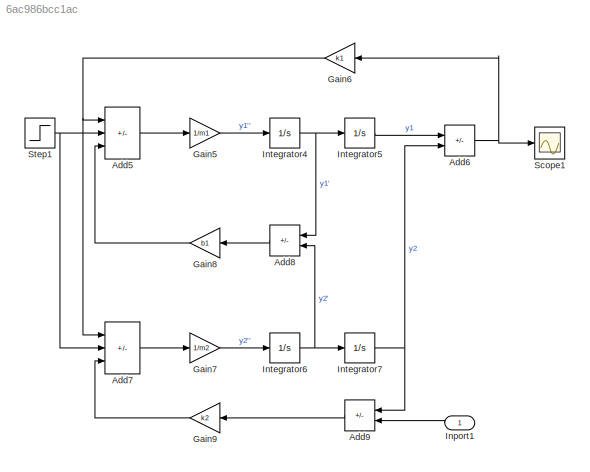
MODEL slx_6ac986bcc1ac
KIND model
CONFIG AbsTol = auto
CONFIG EnableMultiTasking = off
CONFIG FixedStep = auto
CONFIG MaxStep = auto
CONFIG MinStep = auto
CONFIG RelTol = 1e-3
CONFIG SampleTimeConstraint = Unconstrained
CONFIG Solver = VariableStepAuto
CONFIG SolverName = VariableStepAuto
CONFIG StartTime = 0.0
CONFIG StopTime = 100
BLOCK [Sum] Add5
  IconShape = rectangular
  Inputs = -+-
  Ports = [3, 1]
BLOCK [Sum] Add6
  IconShape = rectangular
  Inputs = +-
  Ports = [2, 1]
BLOCK [Sum] Add7
  IconShape = rectangular
  Inputs = +-+
  Ports = [3, 1]
BLOCK [Sum] Add8
  IconShape = rectangular
  Inputs = +-
  Ports = [2, 1]
BLOCK [Sum] Add9
  IconShape = rectangular
  Inputs = -+
  Ports = [2, 1]
BLOCK [Gain] Gain5
  Gain = 1/m1
BLOCK [Gain] Gain6
  Gain = k1
BLOCK [Gain] Gain7
  Gain = 1/m2
BLOCK [Gain] Gain8
  Gain = b1
BLOCK [Gain] Gain9
  Gain = k2
BLOCK [Inport] Inport1
BLOCK [Integrator] Integrator4
  Ports = [1, 1]
BLOCK [Integrator] Integrator5
  Ports = [1, 1]
BLOCK [Integrator] Integrator6
  Ports = [1, 1]
BLOCK [Integrator] Integrator7
  Ports = [1, 1]
BLOCK [Scope] Scope1
  Floating = off
  NumInputPorts = 1
  Ports = [1]
  ScopeSpecificationString = Simulink.scopes.TimeScopeBlockCfg('CurrentConfiguration', extmgr.ConfigurationSet(extmgr.Configuration('Core','General UI',true),extmgr.Configuration('Core','Source UI',true),extmgr.Configuration('Sources','WiredSimulink',true,'DataLoggingVariableName','ScopeData1'),extmgr.Configuration('Visuals','Time Domain',true,'SerializedDisplays',{struct('MinYLimReal','-5.67858','MaxYLimReal','5.93087','YLab...<+1476ch>
BLOCK [Step] Step1
  SampleTime = 0
LINE Add5:1 -> Gain5:1
NET Add6:1 -> Gain6:1, Scope1:1
LINE Add7:1 -> Gain7:1
LINE Add8:1 -> Gain8:1
LINE Add9:1 -> Gain9:1
LINE Gain5:1 -> Integrator4:1
NET Gain6:1 -> Add5:1, Add7:1
LINE Gain7:1 -> Integrator6:1
LINE Gain8:1 -> Add5:3
LINE Gain9:1 -> Add7:3
LINE Inport1:1 -> Add9:2
NET Integrator4:1 -> Add8:1, Integrator5:1
LINE Integrator5:1 -> Add6:1
NET Integrator6:1 -> Add8:2, Integrator7:1
NET Integrator7:1 -> Add6:2, Add9:1
NET Step1:1 -> Add5:2, Add7:2
note: NET lines group one-source signal fan-out (src -> all destinations, sorted); 1:1 wires keep LINE
